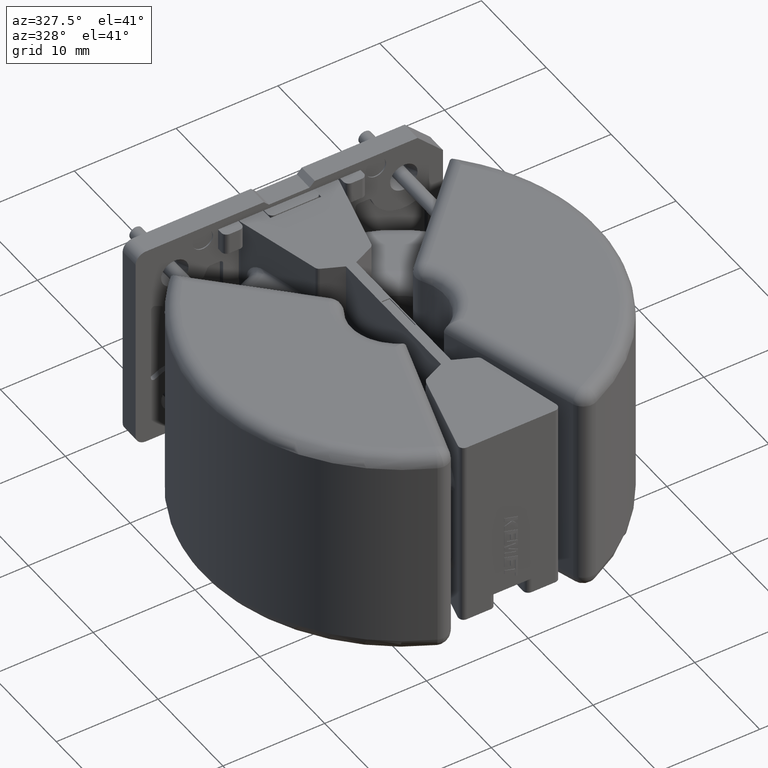
[diagram: clean part render]
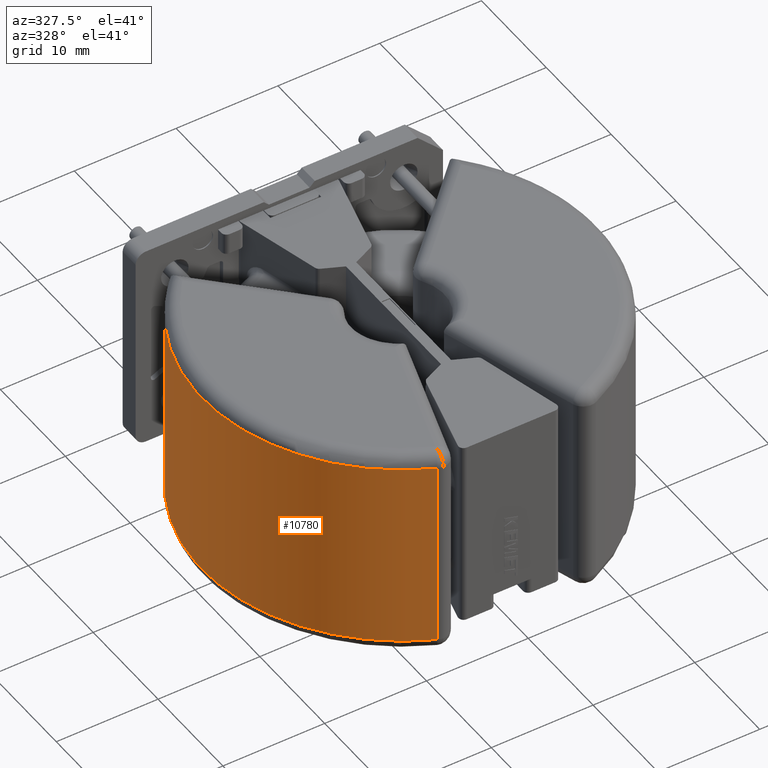
[diagram: same view with one face highlighted and labeled with its STEP entity id]
A machine part, auxiliary view. The second image highlights one B-rep face of the part: STEP entity #10780.
In plain terms, the highlighted cylindrical surface (partial cylindrical patch) has radius 19.7205 mm, axis along (0, -0, -1).
Its self-contained STEP definition (entity closure, byte-faithful):
#33 = VECTOR ( 'NONE', #10550, 1000.000000000000000 ) ;
#1852 = ORIENTED_EDGE ( 'NONE', *, *, #2976, .F. ) ;
#2491 = AXIS2_PLACEMENT_3D ( 'NONE', #6277, #4491, #14695 ) ;
#2812 = VERTEX_POINT ( 'NONE', #20462 ) ;
#2976 = EDGE_CURVE ( 'NONE', #16179, #10111, #6001, .T. ) ;
#3150 = CARTESIAN_POINT ( 'NONE',  ( -13.72398691089654754, 13.72398691089668965, 15.82499999999998863 ) ) ;
#4184 = DIRECTION ( 'NONE',  ( 1.594371120374360605E-16, -1.000000000000000000, 8.796530319306816750E-17 ) ) ;
#4491 = DIRECTION ( 'NONE',  ( 6.442710090731450671E-17, -6.938893903907229610E-17, -1.000000000000000000 ) ) ;
#5624 = DIRECTION ( 'NONE',  ( -6.442710090731450671E-17, 6.938893903907229610E-17, 1.000000000000000000 ) ) ;
#6001 = LINE ( 'NONE', #26971, #33 ) ;
#6277 = CARTESIAN_POINT ( 'NONE',  ( 0.2205422252612282141, -0.2205422252612322664, 15.82499999999999218 ) ) ;
#8242 = AXIS2_PLACEMENT_3D ( 'NONE', #25163, #14646, #4184 ) ;
#10111 = VERTEX_POINT ( 'NONE', #19782 ) ;
#10550 = DIRECTION ( 'NONE',  ( 6.442710090731450671E-17, -6.938893903907229610E-17, -1.000000000000000000 ) ) ;
#10780 = ADVANCED_FACE ( 'NONE', ( #23394 ), #16755, .T. ) ;
#10940 = CIRCLE ( 'NONE', #8242, 19.72054222526122658 ) ;
#13829 = ORIENTED_EDGE ( 'NONE', *, *, #13959, .T. ) ;
#13920 = AXIS2_PLACEMENT_3D ( 'NONE', #16228, #5624, #20382 ) ;
#13933 = DIRECTION ( 'NONE',  ( 6.442710090731450671E-17, -6.938893903907229610E-17, -1.000000000000000000 ) ) ;
#13959 = EDGE_CURVE ( 'NONE', #16179, #2812, #10940, .T. ) ;
#14646 = DIRECTION ( 'NONE',  ( 6.442710090731450671E-17, -6.938893903907229610E-17, -1.000000000000000000 ) ) ;
#14695 = DIRECTION ( 'NONE',  ( -1.594371120374360605E-16, 1.000000000000000000, 0.000000000000000000 ) ) ;
#16179 = VERTEX_POINT ( 'NONE', #26596 ) ;
#16228 = CARTESIAN_POINT ( 'NONE',  ( 0.2205422252612293244, -0.2205422252612336820, -4.275000000000008349 ) ) ;
#16753 = EDGE_CURVE ( 'NONE', #2812, #20554, #24130, .T. ) ;
#16755 = CYLINDRICAL_SURFACE ( 'NONE', #2491, 19.72054222526122658 ) ;
#17154 = EDGE_CURVE ( 'NONE', #20554, #10111, #20081, .T. ) ;
#19602 = VECTOR ( 'NONE', #13933, 1000.000000000000000 ) ;
#19648 = CARTESIAN_POINT ( 'NONE',  ( -13.72398691089655820, 13.72398691089668787, -4.275000000000021672 ) ) ;
#19782 = CARTESIAN_POINT ( 'NONE',  ( -7.797025153598780456, -18.23771178609268873, -4.275000000000004796 ) ) ;
#20081 = CIRCLE ( 'NONE', #13920, 19.72054222526122658 ) ;
#20382 = DIRECTION ( 'NONE',  ( 1.594371120374360605E-16, -1.000000000000000000, 8.796530319306816750E-17 ) ) ;
#20462 = CARTESIAN_POINT ( 'NONE',  ( -13.72398691089654754, 13.72398691089668965, 14.52499999999997726 ) ) ;
#20554 = VERTEX_POINT ( 'NONE', #19648 ) ;
#22587 = ORIENTED_EDGE ( 'NONE', *, *, #16753, .T. ) ;
#23394 = FACE_OUTER_BOUND ( 'NONE', #25622, .T. ) ;
#24130 = LINE ( 'NONE', #3150, #19602 ) ;
#25163 = CARTESIAN_POINT ( 'NONE',  ( 0.2205422252612282974, -0.2205422252612323775, 14.52499999999999147 ) ) ;
#25622 = EDGE_LOOP ( 'NONE', ( #22587, #26925, #1852, #13829 ) ) ;
#26596 = CARTESIAN_POINT ( 'NONE',  ( -7.797025153598787561, -18.23771178609266386, 14.52500000000000391 ) ) ;
#26925 = ORIENTED_EDGE ( 'NONE', *, *, #17154, .T. ) ;
#26971 = CARTESIAN_POINT ( 'NONE',  ( -7.797025153598787561, -18.23771178609266386, 15.82499999999999218 ) ) ;